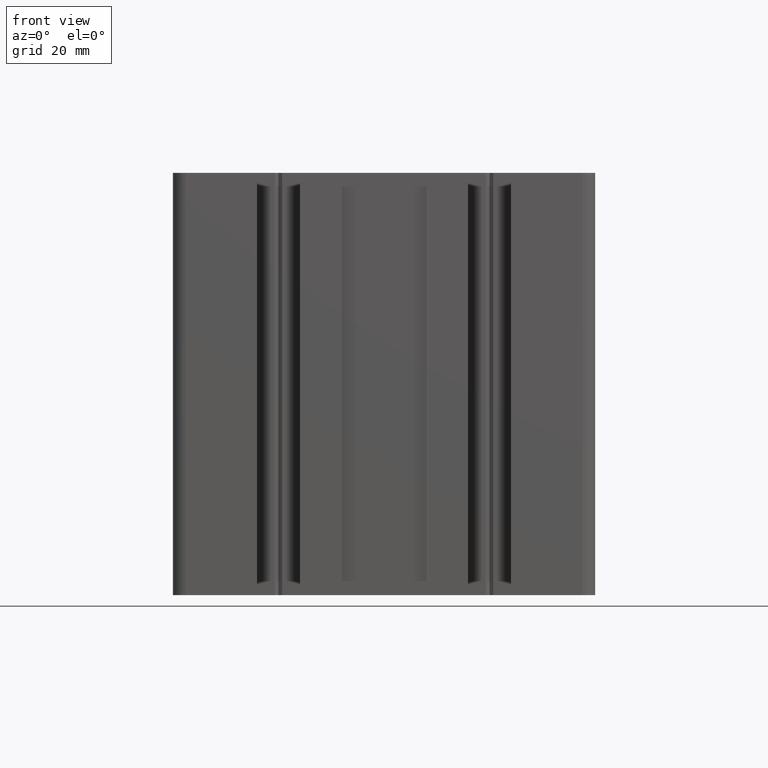
[diagram: clean part render]
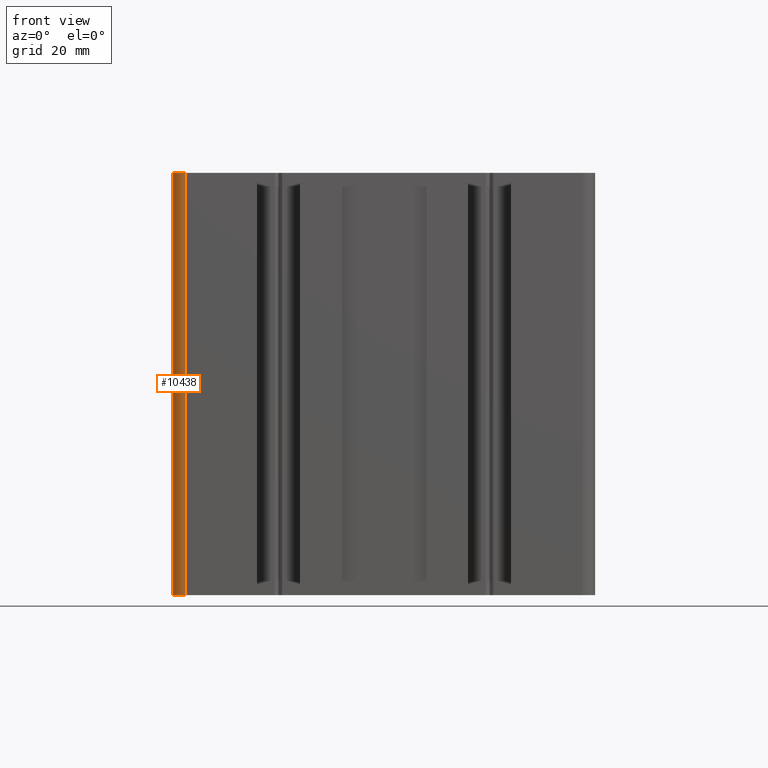
[diagram: same view with one face highlighted and labeled with its STEP entity id]
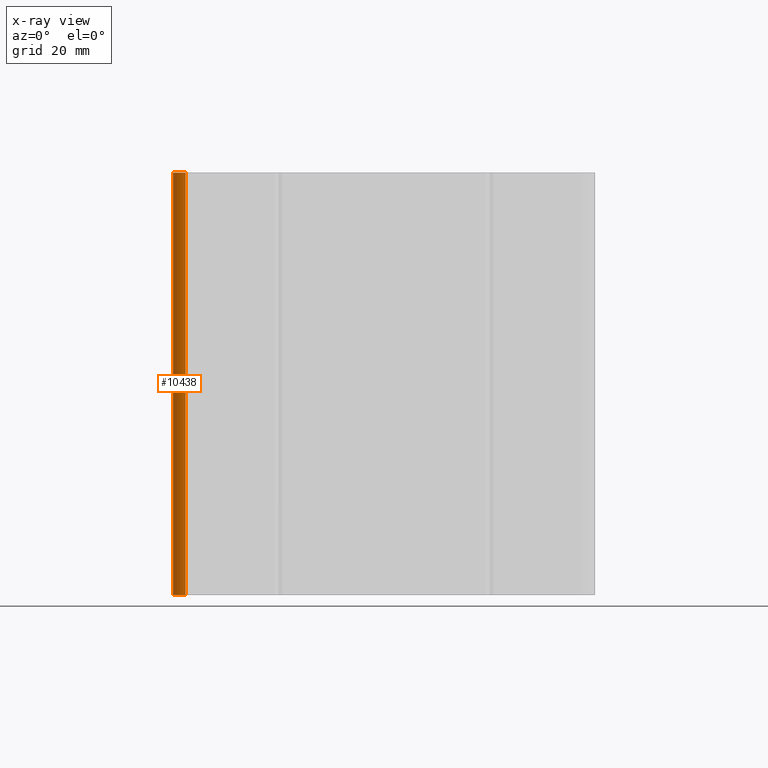
[diagram: x-ray of the same camera — body ghosted, the highlighted face saturated]
A machine part, front view. The second image highlights one B-rep face of the part: STEP entity #10438.
The next image is the same camera in x-ray: the body ghosted, the highlighted face saturated — about 0% of this face is hidden behind the body in this view.
In plain terms, the highlighted cylindrical surface (edge-blend (fillet) strip) has radius 3 mm, axis along (-0, -0, -1).
Its self-contained STEP definition (entity closure, byte-faithful):
#626 = ORIENTED_EDGE ( 'NONE', *, *, #10417, .F. ) ;
#3816 = ORIENTED_EDGE ( 'NONE', *, *, #9605, .T. ) ;
#9556 = VERTEX_POINT ( 'NONE', #16425 ) ;
#9560 = VERTEX_POINT ( 'NONE', #16464 ) ;
#9605 = EDGE_CURVE ( 'NONE', #9556, #9560, #16543, .T. ) ;
#10383 = EDGE_LOOP ( 'NONE', ( #3816, #626, #10420, #10425 ) ) ;
#10417 = EDGE_CURVE ( 'NONE', #10959, #9560, #17878, .T. ) ;
#10420 = ORIENTED_EDGE ( 'NONE', *, *, #10870, .F. ) ;
#10425 = ORIENTED_EDGE ( 'NONE', *, *, #10435, .T. ) ;
#10435 = EDGE_CURVE ( 'NONE', #10829, #9556, #17916, .T. ) ;
#10438 = ADVANCED_FACE ( 'NONE', ( #17933 ), #17912, .T. ) ;
#10829 = VERTEX_POINT ( 'NONE', #18493 ) ;
#10870 = EDGE_CURVE ( 'NONE', #10829, #10959, #18511, .T. ) ;
#10959 = VERTEX_POINT ( 'NONE', #18708 ) ;
#16425 = CARTESIAN_POINT ( 'NONE',  ( -49.99999999999995000, -47.00000000000022000, 0.0000000000000000000 ) ) ;
#16464 = CARTESIAN_POINT ( 'NONE',  ( -47.00000000000000000, -50.00000000000022000, 0.0000000000000000000 ) ) ;
#16535 = CARTESIAN_POINT ( 'NONE',  ( -46.99999999999994300, -47.00000000000022000, 0.0000000000000000000 ) ) ;
#16543 = CIRCLE ( 'NONE', #16561, 3.000000000000002700 ) ;
#16561 = AXIS2_PLACEMENT_3D ( 'NONE', #16535, #16590, #16589 ) ;
#16589 = DIRECTION ( 'NONE',  ( 1.000000000000000000, 0.0000000000000000000, 0.0000000000000000000 ) ) ;
#16590 = DIRECTION ( 'NONE',  ( 0.0000000000000000000, 0.0000000000000000000, 1.000000000000000000 ) ) ;
#17875 = DIRECTION ( 'NONE',  ( -0.0000000000000000000, -0.0000000000000000000, -1.000000000000000000 ) ) ;
#17876 = VECTOR ( 'NONE', #17875, 1000.000000000000000 ) ;
#17877 = CARTESIAN_POINT ( 'NONE',  ( -47.00000000000000000, -50.00000000000022000, 100.0000000000000000 ) ) ;
#17878 = LINE ( 'NONE', #17877, #17876 ) ;
#17905 = DIRECTION ( 'NONE',  ( -1.000000000000000000, 0.0000000000000000000, 0.0000000000000000000 ) ) ;
#17906 = DIRECTION ( 'NONE',  ( -0.0000000000000000000, -0.0000000000000000000, -1.000000000000000000 ) ) ;
#17912 = CYLINDRICAL_SURFACE ( 'NONE', #17922, 3.000000000000002700 ) ;
#17913 = DIRECTION ( 'NONE',  ( -0.0000000000000000000, -0.0000000000000000000, -1.000000000000000000 ) ) ;
#17914 = VECTOR ( 'NONE', #17913, 1000.000000000000000 ) ;
#17915 = CARTESIAN_POINT ( 'NONE',  ( -49.99999999999995000, -47.00000000000022000, 100.0000000000000000 ) ) ;
#17916 = LINE ( 'NONE', #17915, #17914 ) ;
#17918 = CARTESIAN_POINT ( 'NONE',  ( -46.99999999999994300, -47.00000000000022000, 100.0000000000000000 ) ) ;
#17922 = AXIS2_PLACEMENT_3D ( 'NONE', #17918, #17906, #17905 ) ;
#17933 = FACE_OUTER_BOUND ( 'NONE', #10383, .T. ) ;
#18493 = CARTESIAN_POINT ( 'NONE',  ( -49.99999999999995000, -47.00000000000022000, 100.0000000000000000 ) ) ;
#18511 = CIRCLE ( 'NONE', #18562, 3.000000000000002700 ) ;
#18512 = DIRECTION ( 'NONE',  ( 0.0000000000000000000, 0.0000000000000000000, 1.000000000000000000 ) ) ;
#18546 = DIRECTION ( 'NONE',  ( 1.000000000000000000, 0.0000000000000000000, 0.0000000000000000000 ) ) ;
#18552 = CARTESIAN_POINT ( 'NONE',  ( -46.99999999999994300, -47.00000000000022000, 100.0000000000000000 ) ) ;
#18562 = AXIS2_PLACEMENT_3D ( 'NONE', #18552, #18512, #18546 ) ;
#18708 = CARTESIAN_POINT ( 'NONE',  ( -47.00000000000000000, -50.00000000000022000, 100.0000000000000000 ) ) ;